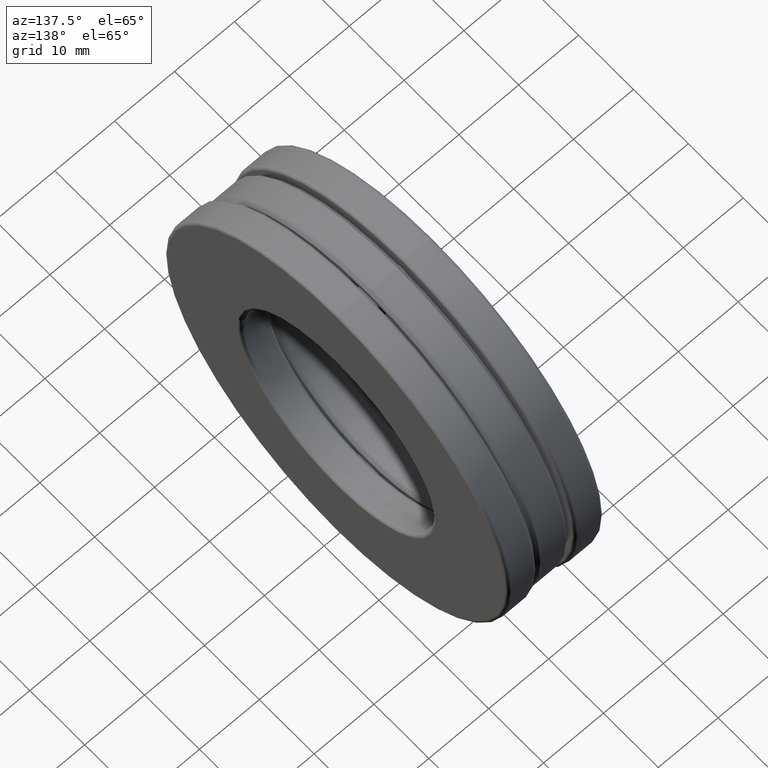
[diagram: clean part render]
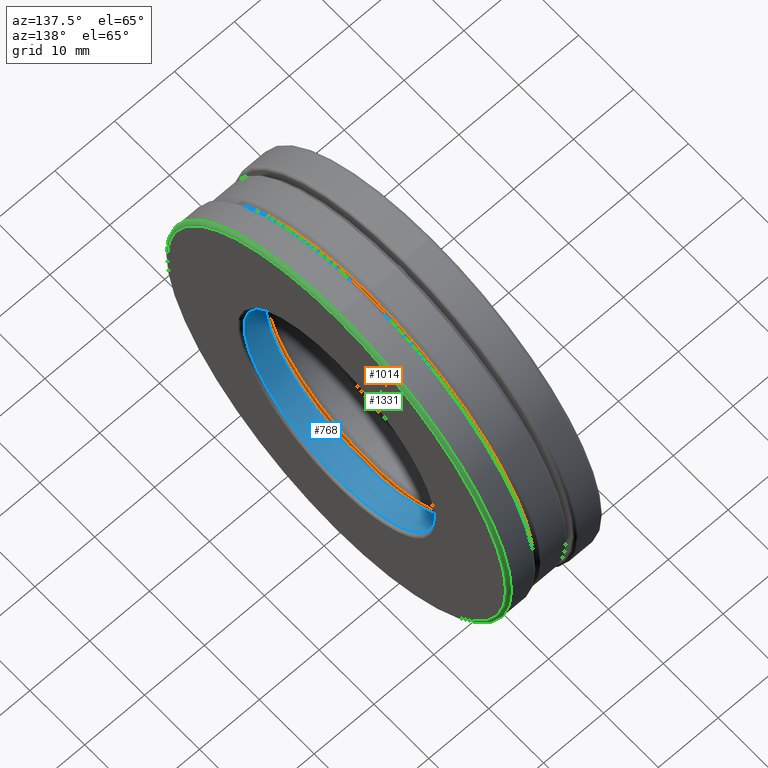
[diagram: same view with three faces highlighted in distinct colors, each labeled with its STEP entity id]
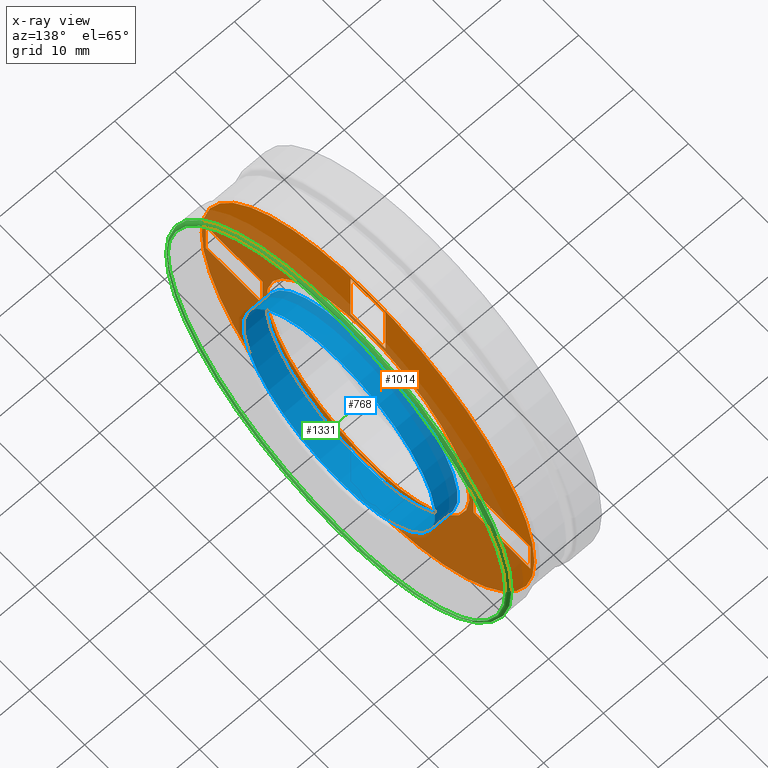
[diagram: x-ray of the same camera — body ghosted, the three highlighted faces saturated]
A machine part, auxiliary view with three faces highlighted in distinct colors.
The next image is the same camera in x-ray (body ghosted, the three faces saturated) — at least one of them is partly hidden behind the body in this view.
Their STEP definitions:

[orange] entity #1014 — the highlighted planar face has unit normal (1, 0, 0).
#19 = DIRECTION ( 'NONE',  ( 0.0000000000000000000, -1.000000000000000000, -1.047444401652940000E-014 ) ) ;
#35 = DIRECTION ( 'NONE',  ( 0.0000000000000000000, 0.0000000000000000000, 1.000000000000000000 ) ) ;
#41 = VERTEX_POINT ( 'NONE', #552 ) ;
#48 = LINE ( 'NONE', #773, #345 ) ;
#75 = DIRECTION ( 'NONE',  ( 0.0000000000000000000, -1.000000000000000000, -1.047444401652940000E-014 ) ) ;
#84 = LINE ( 'NONE', #741, #733 ) ;
#89 = DIRECTION ( 'NONE',  ( -1.000000000000000000, -0.0000000000000000000, -0.0000000000000000000 ) ) ;
#105 = EDGE_CURVE ( 'NONE', #758, #1458, #734, .T. ) ;
#108 = VECTOR ( 'NONE', #439, 39.37007874015748100 ) ;
#123 = ORIENTED_EDGE ( 'NONE', *, *, #1409, .F. ) ;
#131 = VECTOR ( 'NONE', #1414, 39.37007874015748100 ) ;
#141 = AXIS2_PLACEMENT_3D ( 'NONE', #1170, #170, #35 ) ;
#152 = AXIS2_PLACEMENT_3D ( 'NONE', #1387, #720, #842 ) ;
#167 = DIRECTION ( 'NONE',  ( 0.0000000000000000000, -1.000000000000000000, 0.0000000000000000000 ) ) ;
#170 = DIRECTION ( 'NONE',  ( -1.000000000000000000, -0.0000000000000000000, -0.0000000000000000000 ) ) ;
#201 = VECTOR ( 'NONE', #1037, 39.37007874015748100 ) ;
#205 = CARTESIAN_POINT ( 'NONE',  ( 0.1050000000000000400, 0.1250000000000122100, -1.164374999999998400 ) ) ;
#212 = CARTESIAN_POINT ( 'NONE',  ( 0.1050000000000000500, 0.1250000000000079700, -0.7574999999999987300 ) ) ;
#213 = CARTESIAN_POINT ( 'NONE',  ( 0.1050000000000000500, -0.1250000000000040800, 1.164374999999999300 ) ) ;
#217 = ORIENTED_EDGE ( 'NONE', *, *, #427, .T. ) ;
#221 = ORIENTED_EDGE ( 'NONE', *, *, #1222, .F. ) ;
#222 = DIRECTION ( 'NONE',  ( 0.0000000000000000000, 0.0000000000000000000, 1.000000000000000000 ) ) ;
#230 = CARTESIAN_POINT ( 'NONE',  ( 0.1050000000000000500, -0.1249999999999920800, -0.7575000000000013900 ) ) ;
#244 = LINE ( 'NONE', #397, #916 ) ;
#258 = CARTESIAN_POINT ( 'NONE',  ( 0.1050000000000000500, 0.1249999999999973600, 0.7575000000000005100 ) ) ;
#261 = DIRECTION ( 'NONE',  ( 0.0000000000000000000, 1.000000000000000000, 3.491481338843133700E-015 ) ) ;
#266 = LINE ( 'NONE', #212, #1382 ) ;
#269 = CARTESIAN_POINT ( 'NONE',  ( 0.1050000000000000500, 0.1250000000000079700, -0.7574999999999987300 ) ) ;
#278 = FACE_BOUND ( 'NONE', #543, .T. ) ;
#280 = LINE ( 'NONE', #947, #1286 ) ;
#295 = FACE_BOUND ( 'NONE', #1210, .T. ) ;
#324 = FACE_BOUND ( 'NONE', #1121, .T. ) ;
#338 = ORIENTED_EDGE ( 'NONE', *, *, #728, .T. ) ;
#339 = CARTESIAN_POINT ( 'NONE',  ( 0.1050000000000000500, -0.1250000000000026600, 0.7574999999999996200 ) ) ;
#345 = VECTOR ( 'NONE', #222, 39.37007874015748100 ) ;
#353 = EDGE_CURVE ( 'NONE', #596, #41, #1363, .T. ) ;
#355 = ORIENTED_EDGE ( 'NONE', *, *, #1111, .F. ) ;
#364 = EDGE_CURVE ( 'NONE', #711, #638, #280, .T. ) ;
#369 = VECTOR ( 'NONE', #19, 39.37007874015748100 ) ;
#371 = CARTESIAN_POINT ( 'NONE',  ( 0.1050000000000000500, -0.1249999999999877900, -1.164375000000001000 ) ) ;
#394 = ORIENTED_EDGE ( 'NONE', *, *, #464, .T. ) ;
#397 = CARTESIAN_POINT ( 'NONE',  ( 0.1050000000000000500, -0.7575000000000000600, -0.1250000000000000300 ) ) ;
#402 = CARTESIAN_POINT ( 'NONE',  ( 0.1050000000000000500, 0.0000000000000000000, 0.7275000000000001500 ) ) ;
#419 = LINE ( 'NONE', #1281, #964 ) ;
#422 = VERTEX_POINT ( 'NONE', #258 ) ;
#427 = EDGE_CURVE ( 'NONE', #1203, #1458, #1150, .T. ) ;
#429 = VECTOR ( 'NONE', #261, 39.37007874015748100 ) ;
#435 = DIRECTION ( 'NONE',  ( 0.0000000000000000000, 1.047444401652940000E-014, -1.000000000000000000 ) ) ;
#439 = DIRECTION ( 'NONE',  ( 0.0000000000000000000, 0.0000000000000000000, -1.000000000000000000 ) ) ;
#449 = CIRCLE ( 'NONE', #141, 0.7275000000000001500 ) ;
#453 = DIRECTION ( 'NONE',  ( 0.0000000000000000000, 1.000000000000000000, 3.491481338843133000E-015 ) ) ;
#460 = ORIENTED_EDGE ( 'NONE', *, *, #482, .T. ) ;
#464 = EDGE_CURVE ( 'NONE', #876, #876, #449, .T. ) ;
#476 = CARTESIAN_POINT ( 'NONE',  ( 0.1050000000000000500, 0.1250000000000122100, -1.164374999999998400 ) ) ;
#482 = EDGE_CURVE ( 'NONE', #1276, #639, #419, .T. ) ;
#499 = EDGE_LOOP ( 'NONE', ( #1264 ) ) ;
#540 = VERTEX_POINT ( 'NONE', #1401 ) ;
#543 = EDGE_LOOP ( 'NONE', ( #1147, #460, #355, #221 ) ) ;
#552 = CARTESIAN_POINT ( 'NONE',  ( 0.1050000000000000400, 1.164374999999999700, 0.1250000000000000300 ) ) ;
#564 = CARTESIAN_POINT ( 'NONE',  ( 0.1050000000000000400, 1.164374999999999700, 0.0000000000000000000 ) ) ;
#576 = FACE_BOUND ( 'NONE', #821, .T. ) ;
#580 = CARTESIAN_POINT ( 'NONE',  ( 0.1050000000000000400, -1.164374999999999700, -0.1250000000000000300 ) ) ;
#582 = EDGE_CURVE ( 'NONE', #1377, #758, #1302, .T. ) ;
#596 = VERTEX_POINT ( 'NONE', #1079 ) ;
#638 = VERTEX_POINT ( 'NONE', #748 ) ;
#639 = VERTEX_POINT ( 'NONE', #976 ) ;
#673 = ORIENTED_EDGE ( 'NONE', *, *, #943, .F. ) ;
#681 = FACE_BOUND ( 'NONE', #956, .T. ) ;
#711 = VERTEX_POINT ( 'NONE', #339 ) ;
#720 = DIRECTION ( 'NONE',  ( 1.000000000000000000, 0.0000000000000000000, 0.0000000000000000000 ) ) ;
#723 = DIRECTION ( 'NONE',  ( -0.0000000000000000000, 1.000000000000000000, 8.392774174083765200E-017 ) ) ;
#724 = VERTEX_POINT ( 'NONE', #1328 ) ;
#725 = DIRECTION ( 'NONE',  ( 0.0000000000000000000, 0.0000000000000000000, 1.000000000000000000 ) ) ;
#727 = EDGE_CURVE ( 'NONE', #1444, #1444, #1045, .T. ) ;
#728 = EDGE_CURVE ( 'NONE', #1377, #1203, #266, .T. ) ;
#733 = VECTOR ( 'NONE', #1400, 39.37007874015748100 ) ;
#734 = LINE ( 'NONE', #1120, #1432 ) ;
#741 = CARTESIAN_POINT ( 'NONE',  ( 0.1050000000000000400, 0.7575000000000000600, 0.0000000000000000000 ) ) ;
#743 = ORIENTED_EDGE ( 'NONE', *, *, #1197, .T. ) ;
#748 = CARTESIAN_POINT ( 'NONE',  ( 0.1050000000000000400, -0.1250000000000040800, 1.164374999999999300 ) ) ;
#758 = VERTEX_POINT ( 'NONE', #230 ) ;
#773 = CARTESIAN_POINT ( 'NONE',  ( 0.1050000000000000500, -0.7575000000000000600, -0.1250000000000000300 ) ) ;
#779 = VERTEX_POINT ( 'NONE', #1219 ) ;
#790 = CARTESIAN_POINT ( 'NONE',  ( 0.1050000000000000100, 0.0000000000000000000, 0.0000000000000000000 ) ) ;
#805 = LINE ( 'NONE', #1405, #131 ) ;
#821 = EDGE_LOOP ( 'NONE', ( #1355, #1102, #673, #1241 ) ) ;
#832 = CARTESIAN_POINT ( 'NONE',  ( 0.1050000000000000400, 1.151984093713848000E-017, 0.1250000000000000300 ) ) ;
#842 = DIRECTION ( 'NONE',  ( 0.0000000000000000000, 0.0000000000000000000, -1.000000000000000000 ) ) ;
#872 = CARTESIAN_POINT ( 'NONE',  ( 0.1050000000000000500, 0.1250000000000079700, -0.7574999999999987300 ) ) ;
#876 = VERTEX_POINT ( 'NONE', #402 ) ;
#880 = AXIS2_PLACEMENT_3D ( 'NONE', #790, #89, #995 ) ;
#892 = VECTOR ( 'NONE', #723, 39.37007874015748100 ) ;
#916 = VECTOR ( 'NONE', #167, 39.37007874015748100 ) ;
#937 = DIRECTION ( 'NONE',  ( 0.0000000000000000000, -3.491481338843133700E-015, 1.000000000000000000 ) ) ;
#942 = CARTESIAN_POINT ( 'NONE',  ( 0.1050000000000000500, -0.1250000000000026600, 0.7574999999999996200 ) ) ;
#943 = EDGE_CURVE ( 'NONE', #540, #724, #1419, .T. ) ;
#947 = CARTESIAN_POINT ( 'NONE',  ( 0.1050000000000000500, -0.1250000000000026600, 0.7574999999999996200 ) ) ;
#956 = EDGE_LOOP ( 'NONE', ( #394 ) ) ;
#964 = VECTOR ( 'NONE', #725, 39.37007874015748100 ) ;
#970 = CARTESIAN_POINT ( 'NONE',  ( 0.1050000000000000100, 0.0000000000000000000, 1.194375000000000000 ) ) ;
#972 = ORIENTED_EDGE ( 'NONE', *, *, #364, .T. ) ;
#976 = CARTESIAN_POINT ( 'NONE',  ( 0.1050000000000000500, -1.164374999999999700, 0.1249999999999999900 ) ) ;
#995 = DIRECTION ( 'NONE',  ( 0.0000000000000000000, 0.0000000000000000000, 1.000000000000000000 ) ) ;
#1010 = LINE ( 'NONE', #942, #429 ) ;
#1012 = VECTOR ( 'NONE', #75, 39.37007874015748100 ) ;
#1014 = ADVANCED_FACE ( 'NONE', ( #681, #1026, #576, #324, #278, #295 ), #1159, .T. ) ;
#1026 = FACE_OUTER_BOUND ( 'NONE', #499, .T. ) ;
#1037 = DIRECTION ( 'NONE',  ( 0.0000000000000000000, -3.575409080583971300E-015, 1.000000000000000000 ) ) ;
#1042 = EDGE_CURVE ( 'NONE', #779, #1276, #244, .T. ) ;
#1045 = CIRCLE ( 'NONE', #880, 1.194375000000000000 ) ;
#1079 = CARTESIAN_POINT ( 'NONE',  ( 0.1050000000000000400, 0.7575000000000000600, 0.1250000000000000300 ) ) ;
#1082 = VERTEX_POINT ( 'NONE', #1278 ) ;
#1096 = EDGE_CURVE ( 'NONE', #596, #540, #84, .T. ) ;
#1102 = ORIENTED_EDGE ( 'NONE', *, *, #1310, .T. ) ;
#1111 = EDGE_CURVE ( 'NONE', #1151, #639, #805, .T. ) ;
#1120 = CARTESIAN_POINT ( 'NONE',  ( 0.1050000000000000500, -0.1249999999999920800, -0.7575000000000013900 ) ) ;
#1121 = EDGE_LOOP ( 'NONE', ( #338, #217, #1440, #1140 ) ) ;
#1140 = ORIENTED_EDGE ( 'NONE', *, *, #582, .F. ) ;
#1147 = ORIENTED_EDGE ( 'NONE', *, *, #1042, .T. ) ;
#1150 = LINE ( 'NONE', #476, #369 ) ;
#1151 = VERTEX_POINT ( 'NONE', #1435 ) ;
#1159 = PLANE ( 'NONE',  #152 ) ;
#1170 = CARTESIAN_POINT ( 'NONE',  ( 0.1050000000000000500, 0.0000000000000000000, 0.0000000000000000000 ) ) ;
#1194 = LINE ( 'NONE', #1369, #201 ) ;
#1197 = EDGE_CURVE ( 'NONE', #638, #1082, #1447, .T. ) ;
#1203 = VERTEX_POINT ( 'NONE', #205 ) ;
#1210 = EDGE_LOOP ( 'NONE', ( #972, #743, #123, #1413 ) ) ;
#1219 = CARTESIAN_POINT ( 'NONE',  ( 0.1050000000000000500, -0.7575000000000000600, -0.1250000000000000300 ) ) ;
#1222 = EDGE_CURVE ( 'NONE', #779, #1151, #48, .T. ) ;
#1227 = DIRECTION ( 'NONE',  ( 0.0000000000000000000, 1.055837175827023700E-014, -1.000000000000000000 ) ) ;
#1241 = ORIENTED_EDGE ( 'NONE', *, *, #1096, .F. ) ;
#1259 = CARTESIAN_POINT ( 'NONE',  ( 0.1050000000000000400, 2.201080865474319200E-017, -0.1250000000000000800 ) ) ;
#1264 = ORIENTED_EDGE ( 'NONE', *, *, #727, .F. ) ;
#1268 = DIRECTION ( 'NONE',  ( -0.0000000000000000000, 1.000000000000000000, 0.0000000000000000000 ) ) ;
#1269 = VECTOR ( 'NONE', #453, 39.37007874015748100 ) ;
#1276 = VERTEX_POINT ( 'NONE', #580 ) ;
#1278 = CARTESIAN_POINT ( 'NONE',  ( 0.1050000000000000500, 0.1249999999999959200, 1.164375000000000200 ) ) ;
#1281 = CARTESIAN_POINT ( 'NONE',  ( 0.1050000000000000500, -1.164374999999999700, -0.1250000000000000300 ) ) ;
#1286 = VECTOR ( 'NONE', #937, 39.37007874015748100 ) ;
#1302 = LINE ( 'NONE', #872, #1012 ) ;
#1310 = EDGE_CURVE ( 'NONE', #41, #724, #1340, .T. ) ;
#1328 = CARTESIAN_POINT ( 'NONE',  ( 0.1050000000000000400, 1.164374999999999700, -0.1249999999999999900 ) ) ;
#1340 = LINE ( 'NONE', #564, #108 ) ;
#1355 = ORIENTED_EDGE ( 'NONE', *, *, #353, .T. ) ;
#1363 = LINE ( 'NONE', #832, #1450 ) ;
#1369 = CARTESIAN_POINT ( 'NONE',  ( 0.1050000000000000500, 0.1249999999999973600, 0.7575000000000005100 ) ) ;
#1377 = VERTEX_POINT ( 'NONE', #269 ) ;
#1382 = VECTOR ( 'NONE', #435, 39.37007874015748100 ) ;
#1387 = CARTESIAN_POINT ( 'NONE',  ( 0.1050000000000000400, 1.151984093713848000E-017, 0.0000000000000000000 ) ) ;
#1400 = DIRECTION ( 'NONE',  ( 0.0000000000000000000, 0.0000000000000000000, -1.000000000000000000 ) ) ;
#1401 = CARTESIAN_POINT ( 'NONE',  ( 0.1050000000000000400, 0.7575000000000000600, -0.1250000000000000300 ) ) ;
#1403 = EDGE_CURVE ( 'NONE', #711, #422, #1010, .T. ) ;
#1405 = CARTESIAN_POINT ( 'NONE',  ( 0.1050000000000000500, -0.7575000000000000600, 0.1250000000000000300 ) ) ;
#1409 = EDGE_CURVE ( 'NONE', #422, #1082, #1194, .T. ) ;
#1413 = ORIENTED_EDGE ( 'NONE', *, *, #1403, .F. ) ;
#1414 = DIRECTION ( 'NONE',  ( 0.0000000000000000000, -1.000000000000000000, -8.392774174083765200E-017 ) ) ;
#1419 = LINE ( 'NONE', #1259, #892 ) ;
#1432 = VECTOR ( 'NONE', #1227, 39.37007874015748100 ) ;
#1435 = CARTESIAN_POINT ( 'NONE',  ( 0.1050000000000000500, -0.7575000000000000600, 0.1250000000000000300 ) ) ;
#1440 = ORIENTED_EDGE ( 'NONE', *, *, #105, .F. ) ;
#1444 = VERTEX_POINT ( 'NONE', #970 ) ;
#1447 = LINE ( 'NONE', #213, #1269 ) ;
#1450 = VECTOR ( 'NONE', #1268, 39.37007874015748100 ) ;
#1458 = VERTEX_POINT ( 'NONE', #371 ) ;

[blue] entity #768 — the highlighted cylindrical surface (bore or boss wall) has radius 17.4625 mm, axis along (-1, -0, -0).
#21 = DIRECTION ( 'NONE',  ( -1.000000000000000000, -0.0000000000000000000, -0.0000000000000000000 ) ) ;
#94 = DIRECTION ( 'NONE',  ( 0.0000000000000000000, 0.0000000000000000000, 1.000000000000000000 ) ) ;
#99 = DIRECTION ( 'NONE',  ( -1.000000000000000000, -0.0000000000000000000, -0.0000000000000000000 ) ) ;
#106 = CARTESIAN_POINT ( 'NONE',  ( 0.1450000000000000500, 0.0000000000000000000, 0.0000000000000000000 ) ) ;
#107 = ORIENTED_EDGE ( 'NONE', *, *, #1274, .T. ) ;
#157 = AXIS2_PLACEMENT_3D ( 'NONE', #106, #451, #1454 ) ;
#281 = EDGE_CURVE ( 'NONE', #1394, #1394, #750, .T. ) ;
#322 = VERTEX_POINT ( 'NONE', #778 ) ;
#368 = FACE_OUTER_BOUND ( 'NONE', #959, .T. ) ;
#451 = DIRECTION ( 'NONE',  ( -1.000000000000000000, -0.0000000000000000000, -0.0000000000000000000 ) ) ;
#477 = CARTESIAN_POINT ( 'NONE',  ( 0.2925000000000000400, 0.0000000000000000000, 0.6875000000000000000 ) ) ;
#487 = CIRCLE ( 'NONE', #157, 0.6875000000000000000 ) ;
#488 = CARTESIAN_POINT ( 'NONE',  ( 0.2925000000000000400, 0.0000000000000000000, 0.0000000000000000000 ) ) ;
#605 = EDGE_LOOP ( 'NONE', ( #107 ) ) ;
#606 = AXIS2_PLACEMENT_3D ( 'NONE', #488, #21, #704 ) ;
#703 = AXIS2_PLACEMENT_3D ( 'NONE', #888, #99, #94 ) ;
#704 = DIRECTION ( 'NONE',  ( 0.0000000000000000000, 0.0000000000000000000, 1.000000000000000000 ) ) ;
#749 = CYLINDRICAL_SURFACE ( 'NONE', #703, 0.6875000000000000000 ) ;
#750 = CIRCLE ( 'NONE', #606, 0.6875000000000000000 ) ;
#768 = ADVANCED_FACE ( 'NONE', ( #1013, #368 ), #749, .F. ) ;
#778 = CARTESIAN_POINT ( 'NONE',  ( 0.1450000000000000500, 0.0000000000000000000, 0.6875000000000000000 ) ) ;
#888 = CARTESIAN_POINT ( 'NONE',  ( 0.0000000000000000000, 0.0000000000000000000, 0.0000000000000000000 ) ) ;
#959 = EDGE_LOOP ( 'NONE', ( #1083 ) ) ;
#1013 = FACE_OUTER_BOUND ( 'NONE', #605, .T. ) ;
#1083 = ORIENTED_EDGE ( 'NONE', *, *, #281, .F. ) ;
#1274 = EDGE_CURVE ( 'NONE', #322, #322, #487, .T. ) ;
#1394 = VERTEX_POINT ( 'NONE', #477 ) ;
#1454 = DIRECTION ( 'NONE',  ( 0.0000000000000000000, 0.0000000000000000000, 1.000000000000000000 ) ) ;

[green] entity #1331 — the highlighted toroidal blend (fillet) surface has major radius 30.8451 mm and minor (blend) radius 0.508 mm.
#71 = CARTESIAN_POINT ( 'NONE',  ( 0.3125000000000000000, 0.0000000000000000000, 0.0000000000000000000 ) ) ;
#114 = CARTESIAN_POINT ( 'NONE',  ( 0.2925000000000000400, 0.0000000000000000000, 0.0000000000000000000 ) ) ;
#129 = FACE_OUTER_BOUND ( 'NONE', #173, .T. ) ;
#173 = EDGE_LOOP ( 'NONE', ( #1190 ) ) ;
#184 = DIRECTION ( 'NONE',  ( 0.0000000000000000000, 0.0000000000000000000, 1.000000000000000000 ) ) ;
#262 = TOROIDAL_SURFACE ( 'NONE', #1104, 1.214375000000000200, 0.01999999999999994100 ) ;
#390 = DIRECTION ( 'NONE',  ( 0.0000000000000000000, 0.0000000000000000000, 1.000000000000000000 ) ) ;
#431 = CARTESIAN_POINT ( 'NONE',  ( 0.2925000000000000400, 0.0000000000000000000, 1.234375000000000200 ) ) ;
#634 = EDGE_CURVE ( 'NONE', #1024, #1024, #1381, .T. ) ;
#671 = AXIS2_PLACEMENT_3D ( 'NONE', #71, #1195, #184 ) ;
#694 = EDGE_LOOP ( 'NONE', ( #1392 ) ) ;
#717 = DIRECTION ( 'NONE',  ( -1.000000000000000000, -0.0000000000000000000, -0.0000000000000000000 ) ) ;
#830 = CARTESIAN_POINT ( 'NONE',  ( 0.2925000000000000400, 0.0000000000000000000, 0.0000000000000000000 ) ) ;
#978 = FACE_OUTER_BOUND ( 'NONE', #694, .T. ) ;
#1018 = DIRECTION ( 'NONE',  ( -1.000000000000000000, -0.0000000000000000000, -0.0000000000000000000 ) ) ;
#1024 = VERTEX_POINT ( 'NONE', #1437 ) ;
#1030 = EDGE_CURVE ( 'NONE', #1180, #1180, #1428, .T. ) ;
#1104 = AXIS2_PLACEMENT_3D ( 'NONE', #114, #1018, #1123 ) ;
#1123 = DIRECTION ( 'NONE',  ( 0.0000000000000000000, 0.0000000000000000000, 1.000000000000000000 ) ) ;
#1180 = VERTEX_POINT ( 'NONE', #431 ) ;
#1190 = ORIENTED_EDGE ( 'NONE', *, *, #634, .T. ) ;
#1195 = DIRECTION ( 'NONE',  ( -1.000000000000000000, -0.0000000000000000000, -0.0000000000000000000 ) ) ;
#1307 = AXIS2_PLACEMENT_3D ( 'NONE', #830, #717, #390 ) ;
#1331 = ADVANCED_FACE ( 'NONE', ( #978, #129 ), #262, .T. ) ;
#1381 = CIRCLE ( 'NONE', #671, 1.214375000000000200 ) ;
#1392 = ORIENTED_EDGE ( 'NONE', *, *, #1030, .F. ) ;
#1428 = CIRCLE ( 'NONE', #1307, 1.234375000000000200 ) ;
#1437 = CARTESIAN_POINT ( 'NONE',  ( 0.3125000000000000000, 0.0000000000000000000, 1.214375000000000200 ) ) ;